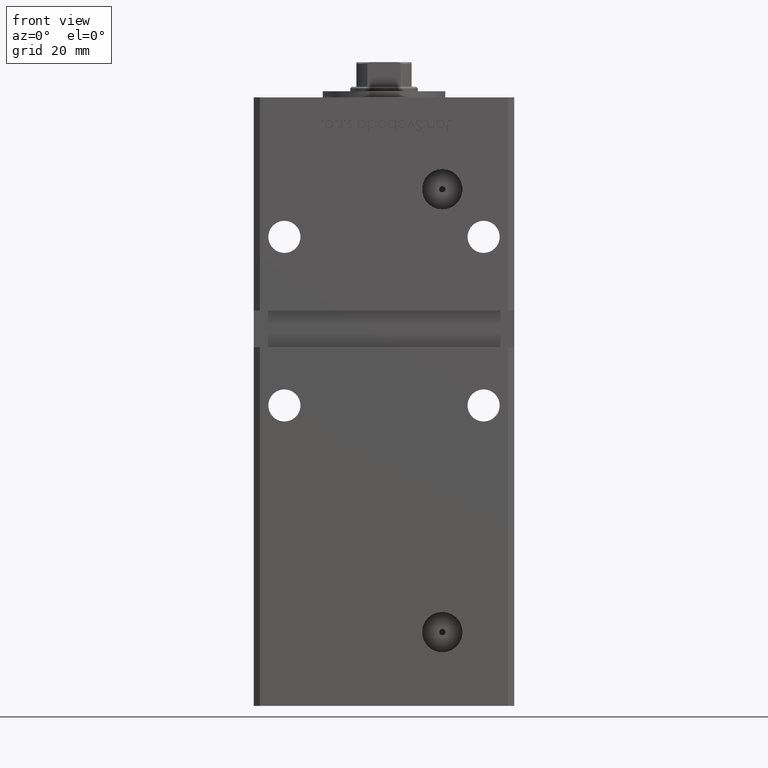
[diagram: clean part render]
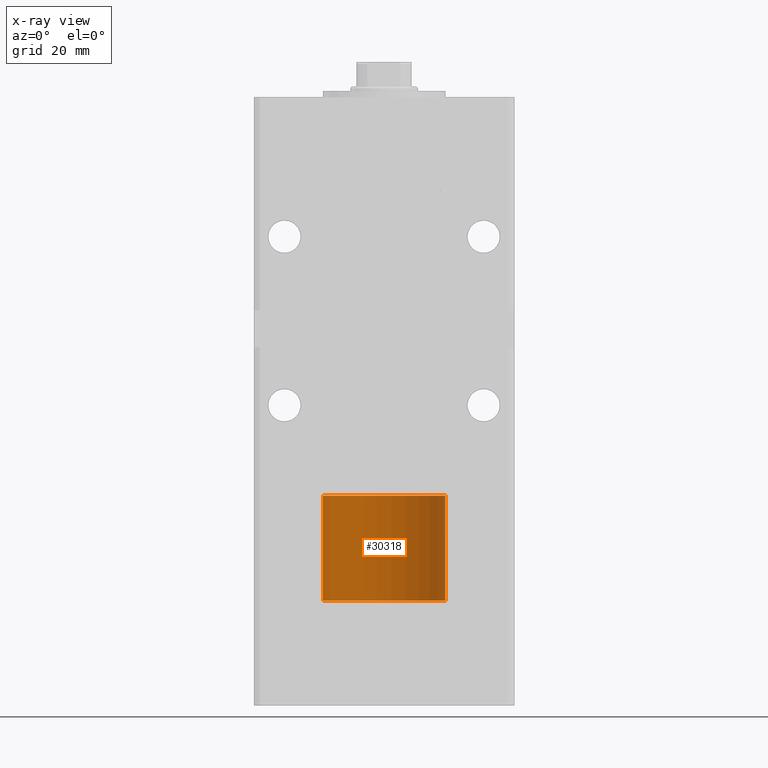
[diagram: x-ray — body ghosted, one internal face saturated and labeled with its STEP entity id]
A machine part, front view, then the same camera in x-ray: the body is ghosted and one INTERNAL B-rep face — a face not visible from any outside direction — is saturated and labeled: STEP entity #30318.
In plain terms, the highlighted cylindrical surface (partial cylindrical patch) has radius 20 mm, axis along (-0, -0, -1).
Its self-contained STEP definition (entity closure, byte-faithful):
#474 = ORIENTED_EDGE ( 'NONE', *, *, #8686, .T. ) ;
#2077 = VERTEX_POINT ( 'NONE', #29471 ) ;
#2893 = CARTESIAN_POINT ( 'NONE',  ( -20.00000000000000000, 0.000000000000000000, 34.25000000000000000 ) ) ;
#2940 = CARTESIAN_POINT ( 'NONE',  ( -20.00000000000000000, 0.000000000000000000, 34.25000000000000000 ) ) ;
#3542 = AXIS2_PLACEMENT_3D ( 'NONE', #4056, #48970, #11845 ) ;
#4056 = CARTESIAN_POINT ( 'NONE',  ( 0.000000000000000000, 0.000000000000000000, 34.25000000000000000 ) ) ;
#4585 = CARTESIAN_POINT ( 'NONE',  ( 0.000000000000000000, 0.000000000000000000, 0.000000000000000000 ) ) ;
#7667 = DIRECTION ( 'NONE',  ( -1.000000000000000000, 0.000000000000000000, 0.000000000000000000 ) ) ;
#8686 = EDGE_CURVE ( 'NONE', #37207, #19987, #50147, .T. ) ;
#9533 = DIRECTION ( 'NONE',  ( -0.000000000000000000, -0.000000000000000000, -1.000000000000000000 ) ) ;
#10518 = VERTEX_POINT ( 'NONE', #2893 ) ;
#11002 = DIRECTION ( 'NONE',  ( -0.000000000000000000, -0.000000000000000000, -1.000000000000000000 ) ) ;
#11139 = AXIS2_PLACEMENT_3D ( 'NONE', #33219, #28365, #7667 ) ;
#11845 = DIRECTION ( 'NONE',  ( 1.000000000000000000, 0.000000000000000000, 0.000000000000000000 ) ) ;
#12205 = VECTOR ( 'NONE', #11002, 1000.000000000000000 ) ;
#16531 = ORIENTED_EDGE ( 'NONE', *, *, #35175, .F. ) ;
#18115 = CARTESIAN_POINT ( 'NONE',  ( 20.00000000000000000, 2.449293598294706513E-15, 34.25000000000000000 ) ) ;
#18136 = CIRCLE ( 'NONE', #3542, 20.00000000000000000 ) ;
#19909 = DIRECTION ( 'NONE',  ( 0.000000000000000000, 0.000000000000000000, 1.000000000000000000 ) ) ;
#19987 = VERTEX_POINT ( 'NONE', #35188 ) ;
#20840 = CYLINDRICAL_SURFACE ( 'NONE', #11139, 20.00000000000000000 ) ;
#24212 = DIRECTION ( 'NONE',  ( 1.000000000000000000, 0.000000000000000000, 0.000000000000000000 ) ) ;
#24340 = ORIENTED_EDGE ( 'NONE', *, *, #34320, .T. ) ;
#28076 = CARTESIAN_POINT ( 'NONE',  ( 20.00000000000000000, 2.449293598294706513E-15, 34.25000000000000000 ) ) ;
#28365 = DIRECTION ( 'NONE',  ( -0.000000000000000000, -0.000000000000000000, -1.000000000000000000 ) ) ;
#29471 = CARTESIAN_POINT ( 'NONE',  ( -20.00000000000000000, 0.000000000000000000, 0.000000000000000000 ) ) ;
#30318 = ADVANCED_FACE ( 'NONE', ( #37264 ), #20840, .T. ) ;
#33219 = CARTESIAN_POINT ( 'NONE',  ( 0.000000000000000000, 0.000000000000000000, 34.25000000000000000 ) ) ;
#34320 = EDGE_CURVE ( 'NONE', #19987, #2077, #34466, .T. ) ;
#34466 = CIRCLE ( 'NONE', #43898, 20.00000000000000000 ) ;
#35175 = EDGE_CURVE ( 'NONE', #37207, #10518, #18136, .T. ) ;
#35188 = CARTESIAN_POINT ( 'NONE',  ( 20.00000000000000000, 2.449293598294706513E-15, 0.000000000000000000 ) ) ;
#35948 = VECTOR ( 'NONE', #9533, 1000.000000000000000 ) ;
#37207 = VERTEX_POINT ( 'NONE', #28076 ) ;
#37264 = FACE_OUTER_BOUND ( 'NONE', #44278, .T. ) ;
#40310 = ORIENTED_EDGE ( 'NONE', *, *, #42516, .F. ) ;
#42516 = EDGE_CURVE ( 'NONE', #10518, #2077, #47857, .T. ) ;
#43898 = AXIS2_PLACEMENT_3D ( 'NONE', #4585, #19909, #24212 ) ;
#44278 = EDGE_LOOP ( 'NONE', ( #16531, #474, #24340, #40310 ) ) ;
#47857 = LINE ( 'NONE', #2940, #12205 ) ;
#48970 = DIRECTION ( 'NONE',  ( 0.000000000000000000, 0.000000000000000000, 1.000000000000000000 ) ) ;
#50147 = LINE ( 'NONE', #18115, #35948 ) ;